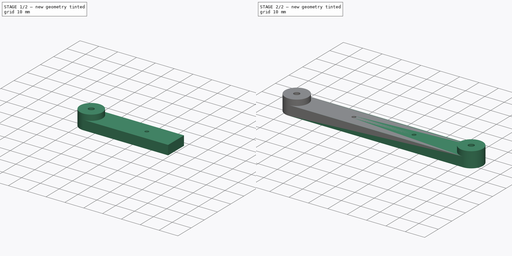
[diagram: build sequence overview — one tinted view per stage of 2, left to right]
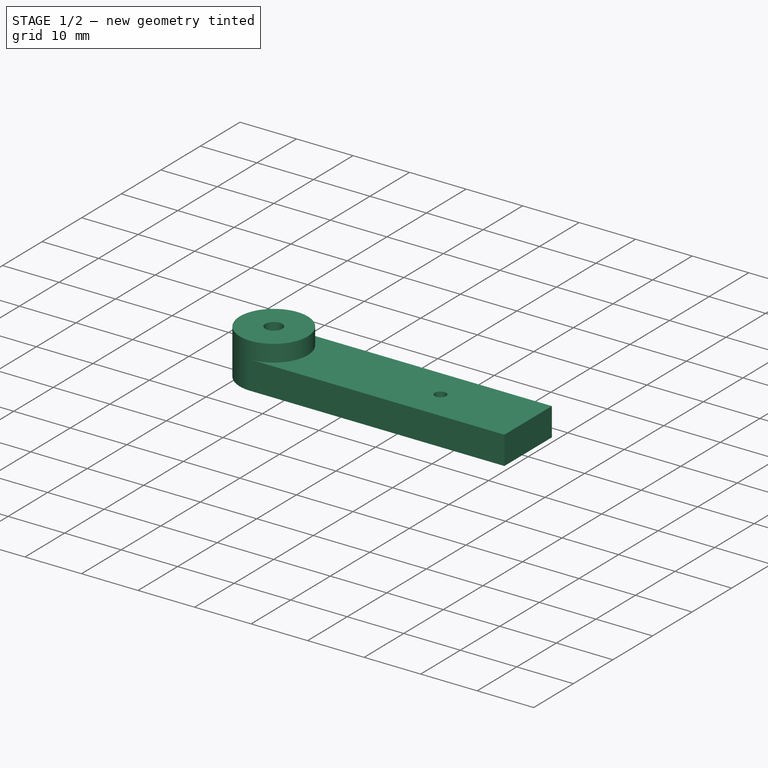
[diagram: stage 1 of 2 — iso view after this stage's code; geometry added in this stage tinted green]
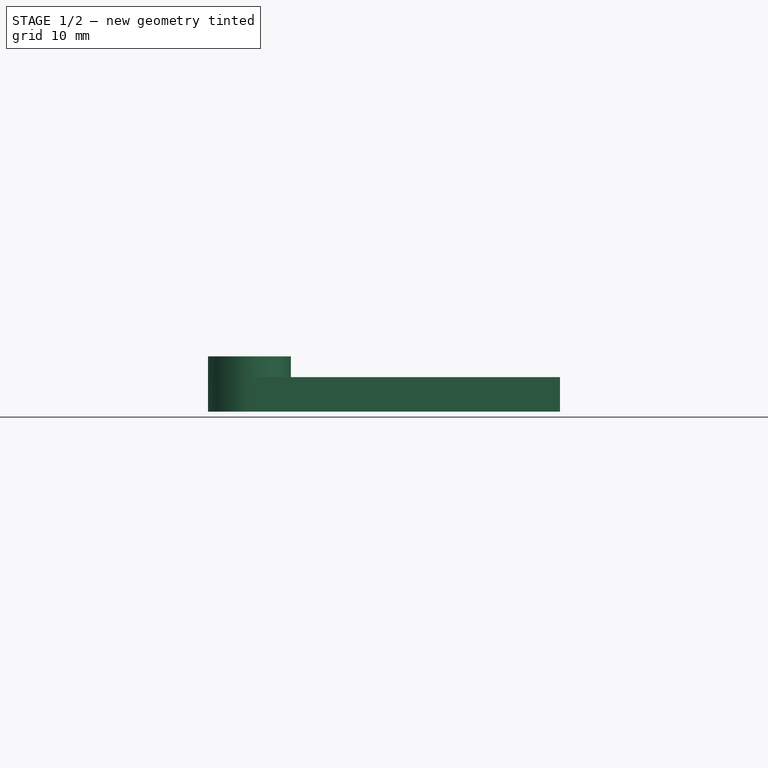
[diagram: stage 1 of 2 — front view after this stage's code; geometry added in this stage tinted green]
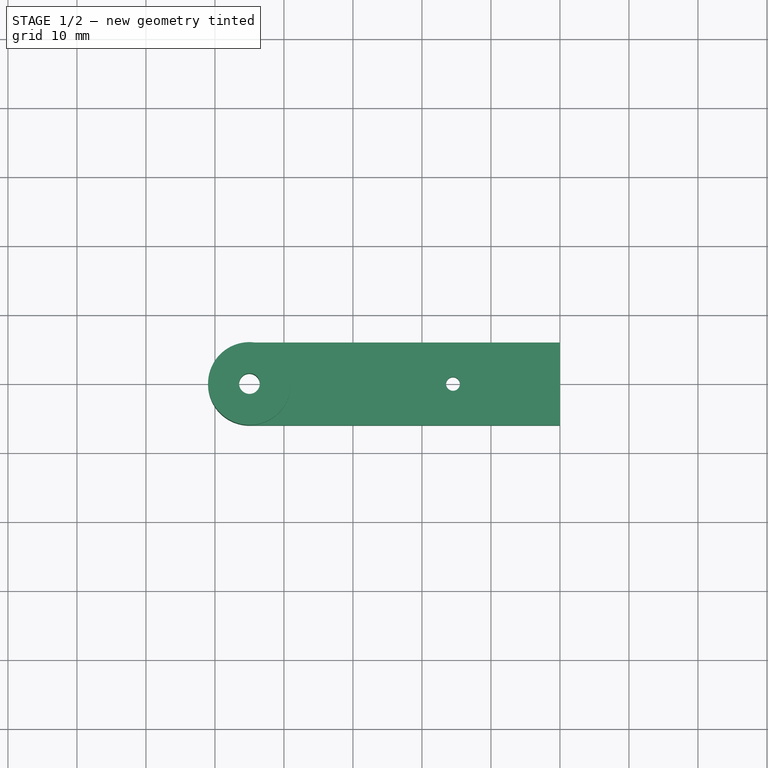
[diagram: stage 1 of 2 — top view after this stage's code; geometry added in this stage tinted green]
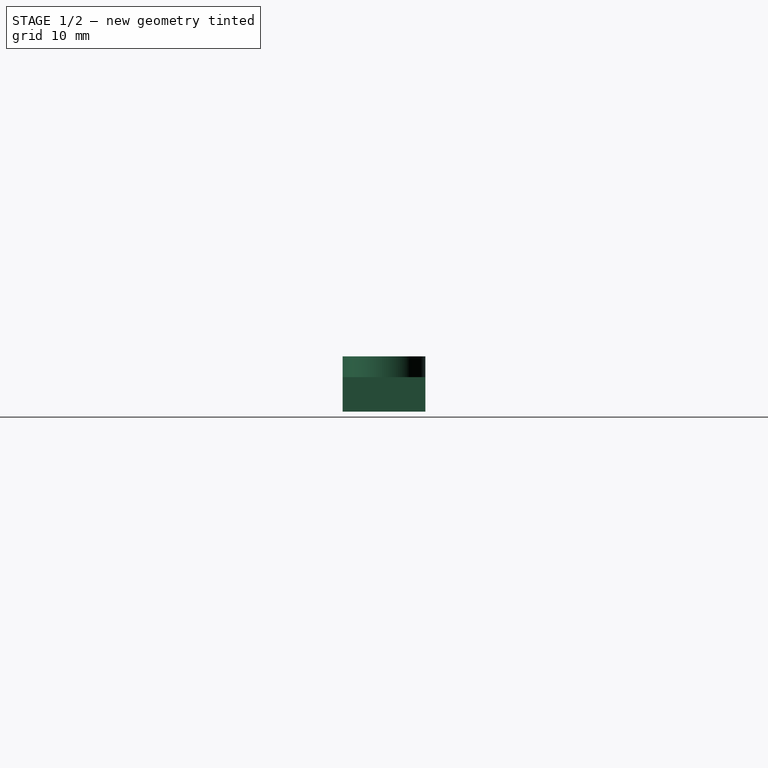
[diagram: stage 1 of 2 — right view after this stage's code; geometry added in this stage tinted green]
FCSTD DOCUMENT  (FreeCAD 1.0R38641 +468 (Git))
Label: dmt332t_mount
License: All rights reserved
LicenseURL: https://en.wikipedia.org/wiki/All_rights_reserved
objects: Sketcher::SketchObject×2, PartDesign::Pad×2, Spreadsheet::Sheet×1, PartDesign::Mirrored×1, PartDesign::Body×1
note: 13 computed .brp shape members not serialized (recipe doc carries the construction recipe); baked Part::Feature solids carry a one-line shape summary decoded from their .brp

FEATURE [Sketcher::SketchObject] Sketch
  ArcFitTolerance = 1e-06
  AttachmentSupport = -> [XY_Plane]
  FullyConstrained = false
  MakeInternals = false
  MapMode = 5
  expr: Constraints[14] = <<ss>>.holes_dia * 2
  expr: Constraints[27] = 31 / 2
  expr: Constraints[30] = <<ss>>.pcb_x
  expr: Constraints[5] = <<ss>>.holes_dia
  sketch-geometry (18):
    g0: LineSegment [constr] StartX=33 StartY=-23 StartZ=0 EndX=33 EndY=0 EndZ=0
    g1: LineSegment [constr] StartX=33 StartY=0 StartZ=0 EndX=-45 EndY=0 EndZ=0
    g2: GeomPoint [constr] X=0 Y=0 Z=0
    g3: Circle CenterX=-45 CenterY=0 CenterZ=0 NormalX=0 NormalY=0 NormalZ=1 AngleXU=0 Radius=1.5
    g4: Circle CenterX=-15.5 CenterY=0 CenterZ=0 NormalX=0 NormalY=0 NormalZ=1 AngleXU=0 Radius=1
    g5: GeomPoint [constr] X=0 Y=0 Z=0
    g6: LineSegment [constr] StartX=-15.5 StartY=0 StartZ=0 EndX=-45 EndY=0 EndZ=0
    g7: ArcOfCircle [constr] CenterX=-15.5 CenterY=0 CenterZ=0 NormalX=0 NormalY=0 NormalZ=1 AngleXU=0 Radius=6 StartAngle=4.71239 EndAngle=7.85398
    g8: ArcOfCircle CenterX=-45 CenterY=0 CenterZ=0 NormalX=0 NormalY=0 NormalZ=1 AngleXU=0 Radius=6 StartAngle=1.5708 EndAngle=4.71239
    g9: LineSegment [constr] StartX=-15.5 StartY=-6 StartZ=0 EndX=-45 EndY=-6 EndZ=0
    g10: LineSegment [constr] StartX=22.3 StartY=-18.841 StartZ=0 EndX=22.3 EndY=2.5 EndZ=0
    g11: LineSegment [constr] StartX=22.3 StartY=2.5 StartZ=0 EndX=-18 EndY=2.5 EndZ=0
    g12: GeomPoint [constr] X=0 Y=0 Z=0
    g13: LineSegment [constr] StartX=-45 StartY=6 StartZ=0 EndX=-15.5 EndY=6 EndZ=0
    g14: LineSegment StartX=-45 StartY=6 StartZ=0 EndX=0 EndY=6 EndZ=0
    g15: GeomPoint X=-22.3294 Y=6 Z=0
    g16: LineSegment StartX=-45 StartY=-6 StartZ=0 EndX=0 EndY=-6 EndZ=0
    g17: LineSegment StartX=0 StartY=-6 StartZ=0 EndX=0 EndY=6 EndZ=0
  constraints (37):
    c: Coincident(g0,g1)
    c: Horizontal(g1)
    c: Vertical(g0)
    c: Coincident(g2,g-1)
    c: Coincident(g3,g1)
    c: Diameter(g3) = 3
    c: Coincident(g5,g2)
    c: Coincident(g6,g4)
    c: Coincident(g6,g1)
    c: Tangent(g7,g9) = 1.5708
    c: Tangent(g8,g9) = 1.5708
    c: Equal(g7,g8)
    c: Coincident(g7,g4)
    c: Coincident(g8,g1)
    c: Radius(g8) = 6
    c: Coincident(g10,g11)
    c: Horizontal(g11)
    c: Vertical(g10)
    c: Coincident(g12,g2)
    c: DistanceY(g4,g11) = 2.5
    c: DistanceX(g11,g4) = 2.5
    c: Coincident(g13,g8)
    c: Coincident(g13,g7)
    c: Tangent(g8,g14) = 1.5708
    c: PointOnObject(g15,g14)
    c: PointOnObject(g15,g13)
    c: Symmetric(g7,g7,g4)
    c: DistanceX(g4,g2) = 15.5
    c: PointOnObject(g4,g-1)
    c: PointOnObject(g1,g-1)
    c: DistanceX(g1,g2) = 45
    c: Tangent(g8,g16) = -1.5708
    c: Coincident(g16,g17)
    c: Coincident(g17,g14)
    c: Vertical(g17)
    c: PointOnObject(g16,g-2)
    c: Diameter(g4) = 2
FEATURE [Spreadsheet::Sheet] Spreadsheet  label="ss"
  cells = A2='take in acount holes distances; A3='pcb_x; B3(pcb_x)=45; A6='holes_dia; B6(holes_dia)=3
FEATURE [PartDesign::Pad] Pad
  Direction = (0,0,1)
  Length = 5
  Length2 = 10
  Profile = -> Sketch
  ReferenceAxis = -> Sketch [N_Axis]
  Refine = true
  Suppressed = false
  Type = 0
FEATURE [Sketcher::SketchObject] Sketch001
  ArcFitTolerance = 1e-06
  AttachmentSupport = -> [Pad]
  ExternalGeometry = -> [Pad]
  FullyConstrained = true
  MakeInternals = false
  MapMode = 5
  Placement = pos=(0,0,5) rot=(0,0,1;0rad)
  expr: Constraints[3] = <<ss>>.holes_dia
  sketch-geometry (2):
    g0: Circle CenterX=-45 CenterY=0 CenterZ=0 NormalX=0 NormalY=0 NormalZ=1 AngleXU=0 Radius=1.5
    g1: Circle CenterX=-45 CenterY=0 CenterZ=0 NormalX=0 NormalY=0 NormalZ=1 AngleXU=0 Radius=6
  constraints (4):
    c: Coincident(g0,g-4)
    c: Coincident(g1,g0)
    c: PointOnObject(g-4,g1)
    c: Diameter(g0) = 3
FEATURE [PartDesign::Pad] Pad001
  BaseFeature = -> Pad
  Direction = (0,0,1)
  Length = 3
  Length2 = 10
  Profile = -> Sketch001
  ReferenceAxis = -> Sketch001 [N_Axis]
  Refine = true
  Suppressed = false
  Type = 0
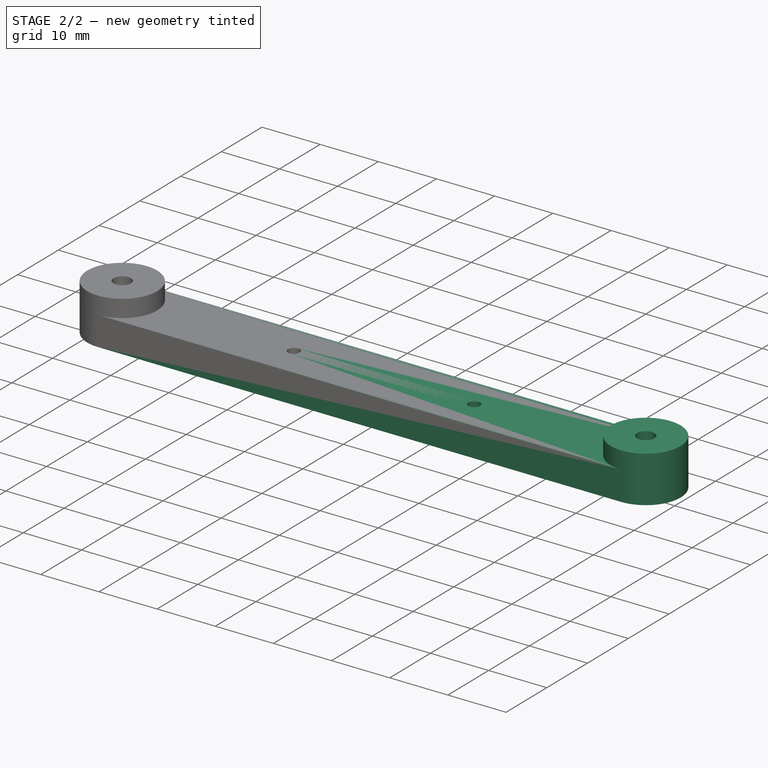
[diagram: stage 2 of 2 — iso view after this stage's code; geometry added in this stage tinted green]
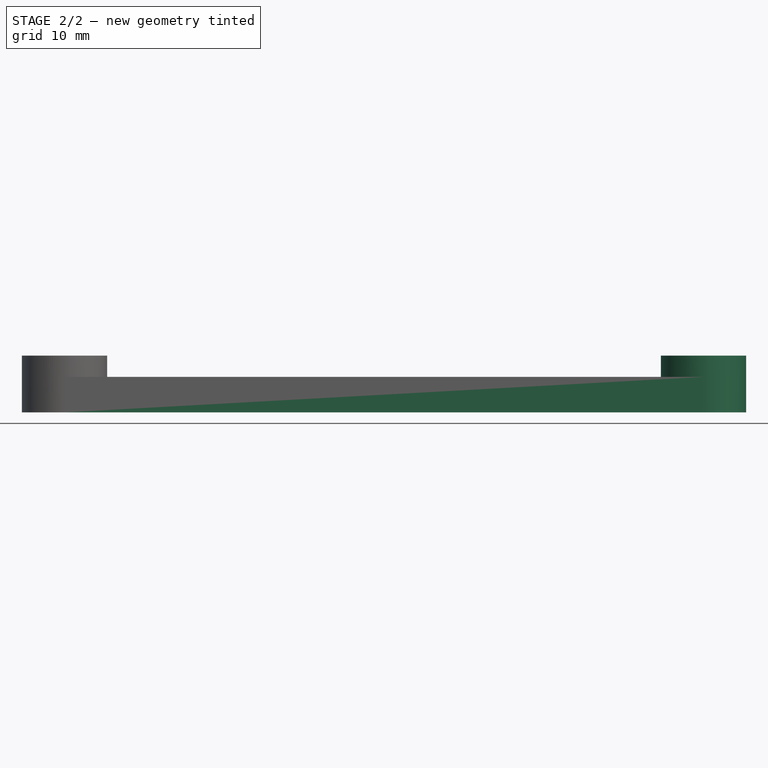
[diagram: stage 2 of 2 — front view after this stage's code; geometry added in this stage tinted green]
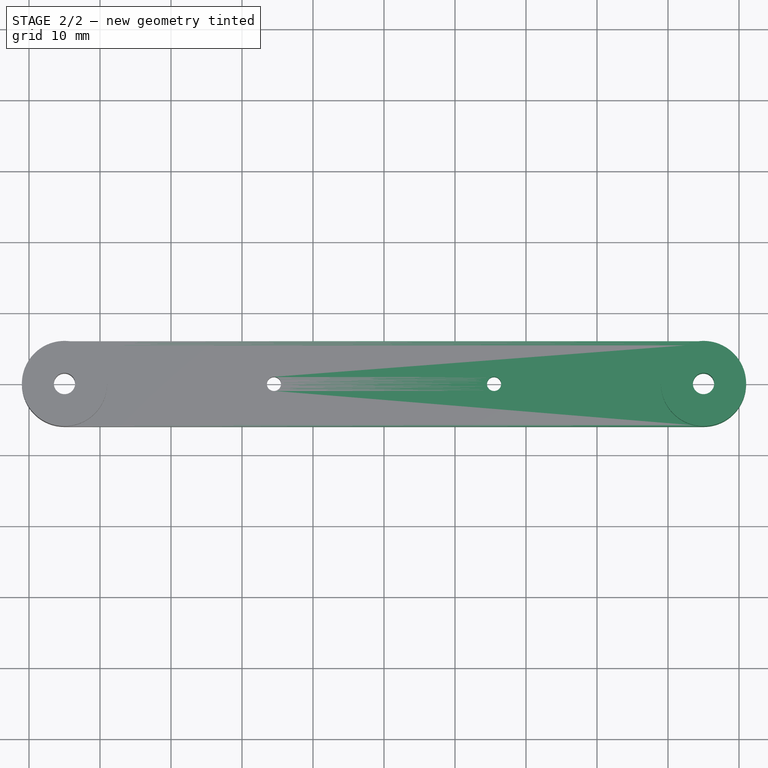
[diagram: stage 2 of 2 — top view after this stage's code; geometry added in this stage tinted green]
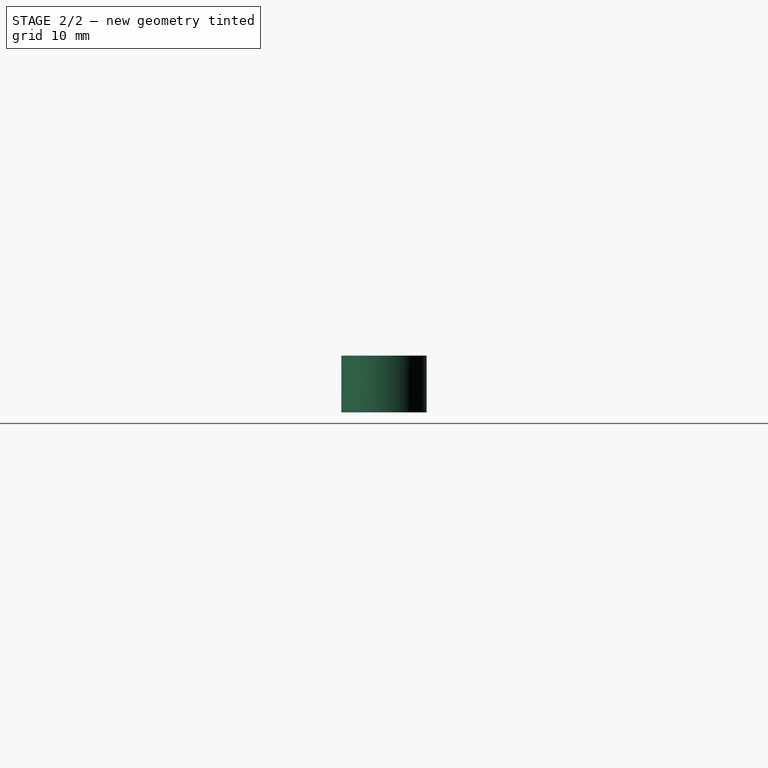
[diagram: stage 2 of 2 — right view after this stage's code; geometry added in this stage tinted green]
FEATURE [PartDesign::Mirrored] Mirrored
  BaseFeature = -> Pad001
  MirrorPlane = -> Sketch001 [V_Axis]
  Originals = -> [Pad001]
  Refine = true
  Suppressed = false
  TransformMode = 1
FEATURE [PartDesign::Body] Body
  AllowCompound = false
  Group = -> [Sketch,Pad,Sketch001,Pad001,Mirrored]
  Origin = -> Origin
  Tip = -> Mirrored
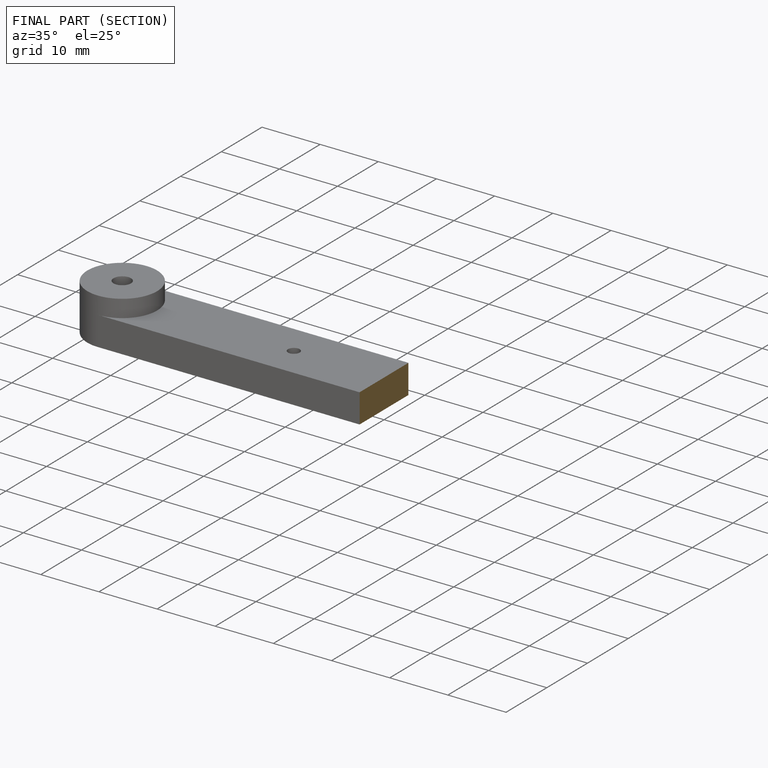
[diagram: finished part — half-section view (interior)]
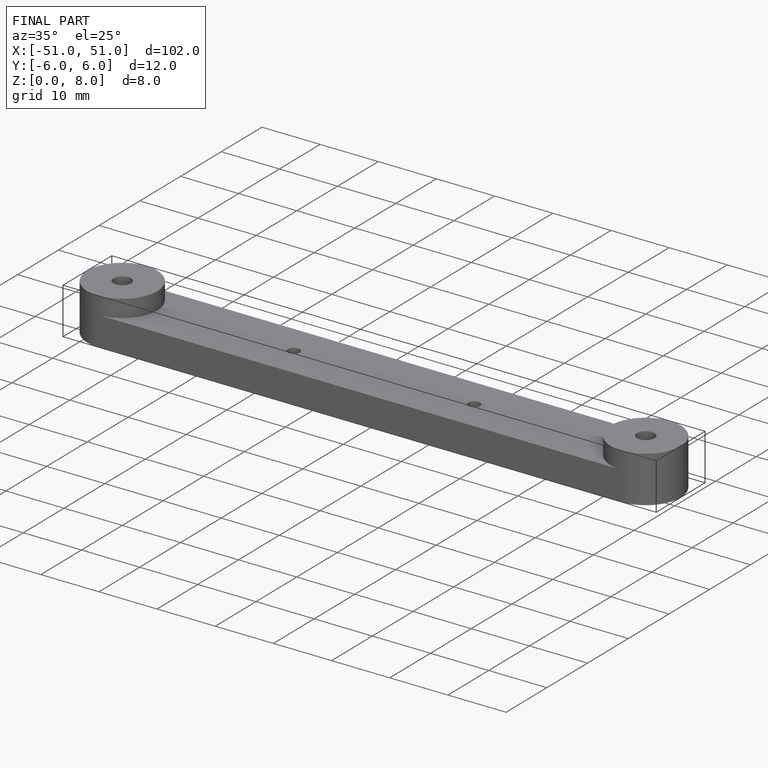
[diagram: finished part — iso view with bounding-box wireframe]
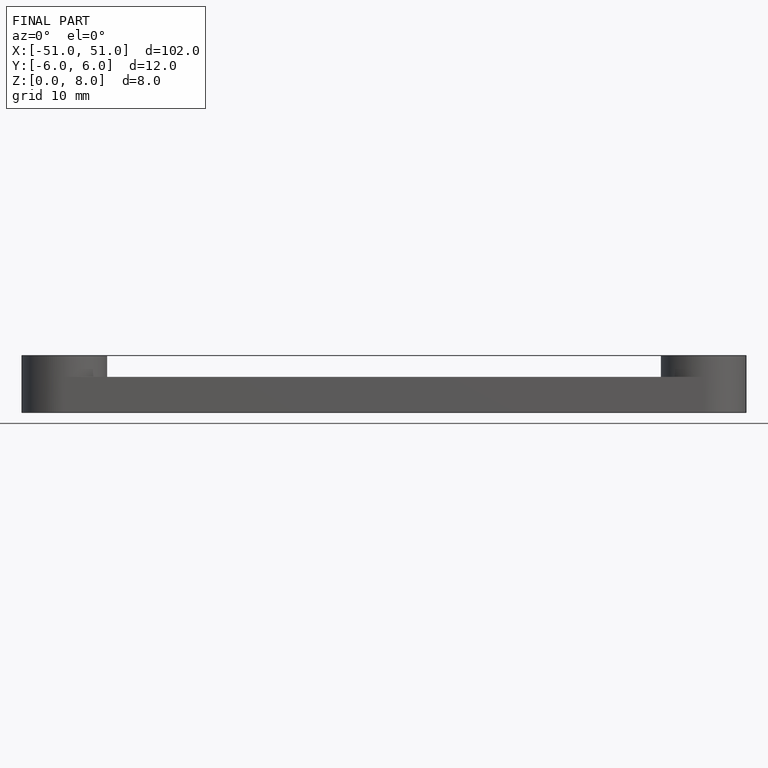
[diagram: finished part — front view with bounding-box wireframe]
